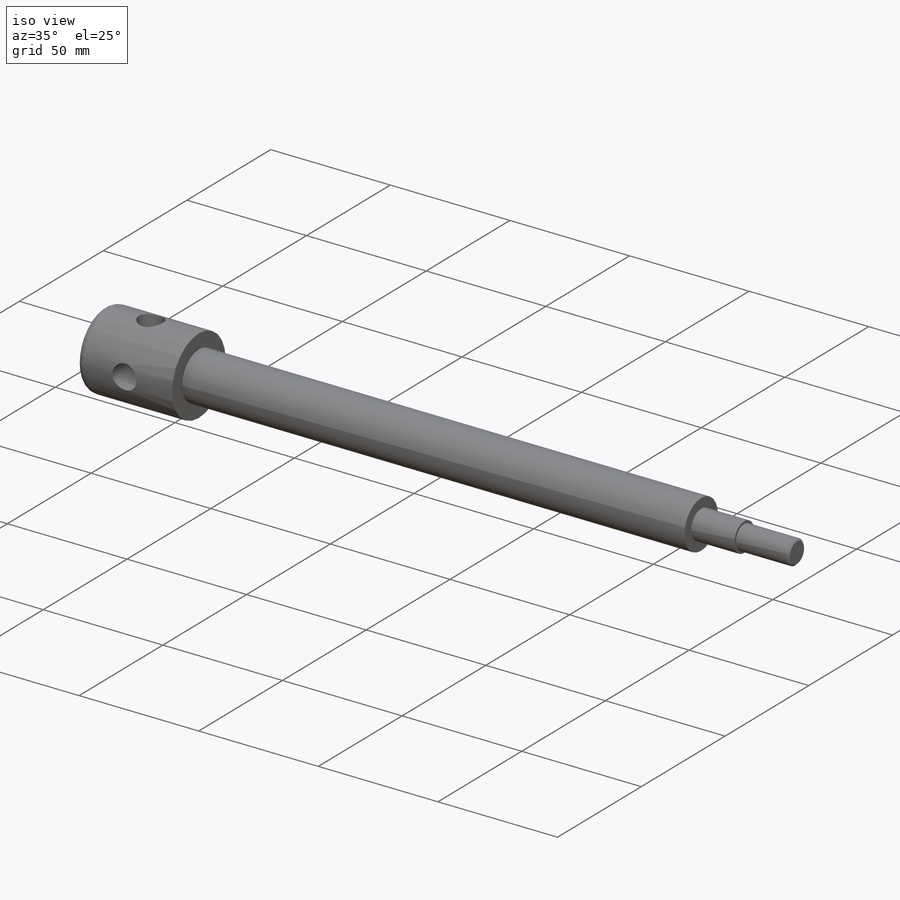
[diagram: iso view]
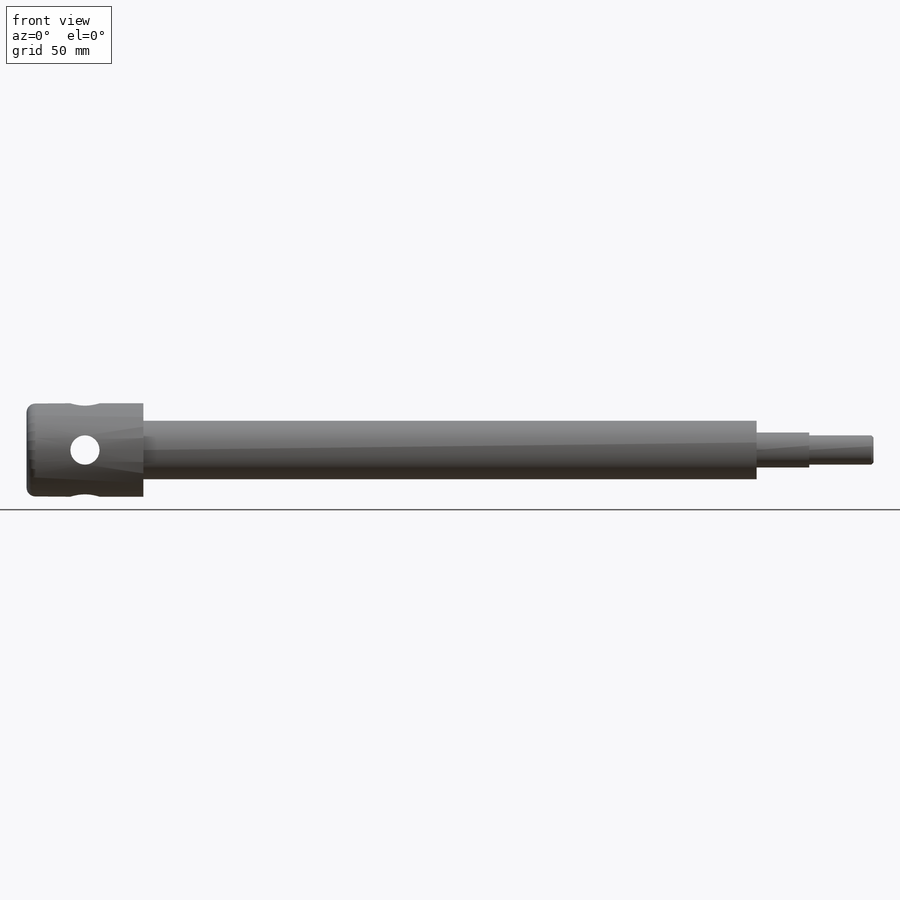
[diagram: front view]
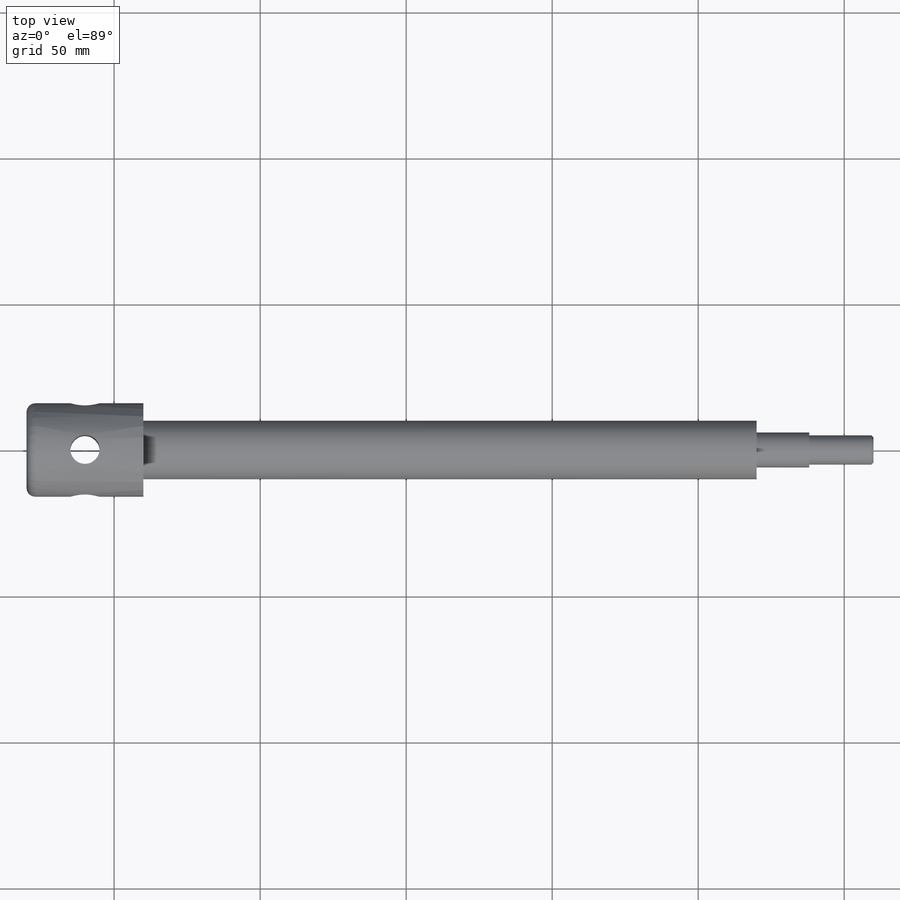
[diagram: top view]
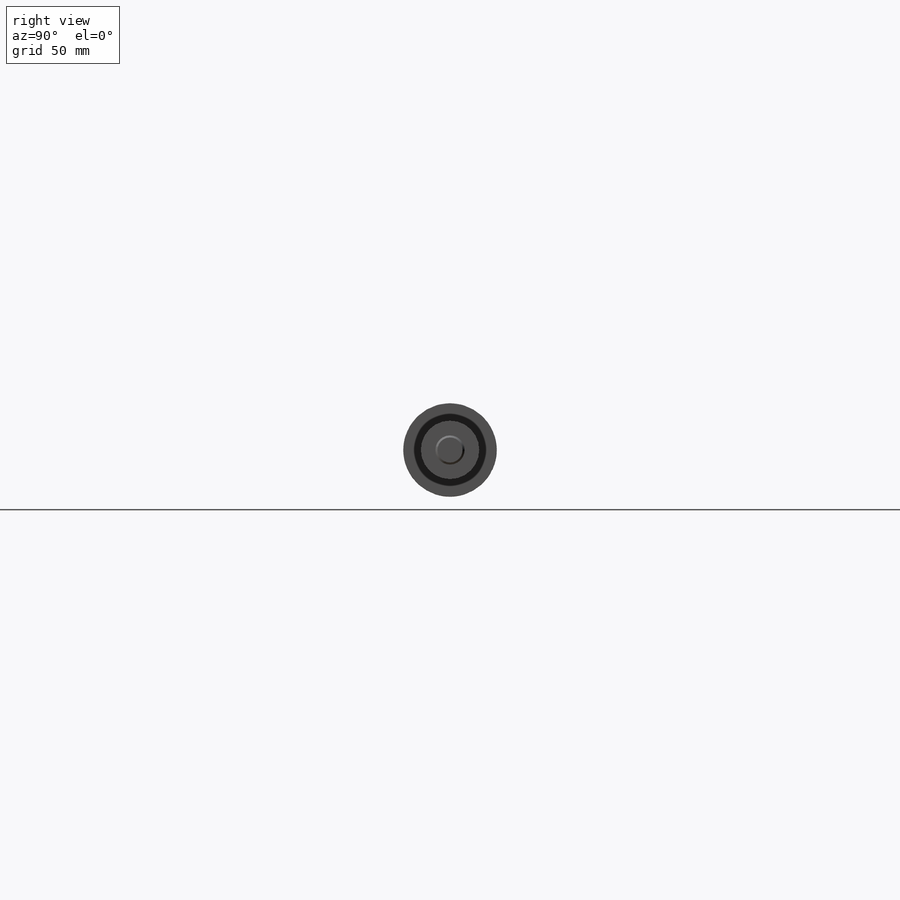
[diagram: right view]
SOLIDWORKS PART (.sldprt)
format: sldprt  version: not decoded by parser v0  size: 253,952 bytes
history: native  units: mm
features: sketch x4, thread x2, cut_extrude x2, material x1, revolve x1 (+13 scaffold rows collapsed)
feature tree (23):
  scaffold x13  (default folders/planes/origin — collapsed)
  material  "Material <not specified>"
  sketch  "Sketch1"  dims[c1.D9=3.0mm c1.D1=5.0mm c1.D2=6.0mm c1.D3=22.0mm c1.D4=18.0mm c1.D5=250.0mm c1.D6=40.0mm c1.D7=16.0mm c1.D8=~9.998359mm c1.D10=1.0mm c1.D11=1.0mm c2.D11=45.0deg]
  revolve  "Revolve1"  [1 undecoded]
  thread  "Cosmetic Thread1"  Diameter=170mm  [1 undecoded]
  thread  "Cosmetic Thread2"  Diameter=22mm  [1 undecoded]
  sketch  "Sketch2"  dims[D3=10.0mm D1=20.0mm D2=16.0mm]
  cut_extrude  "Cut-Extrude1"  Depth=100mm
  sketch  "Sketch3"  dims[D2=10.0mm D1=20.0mm]
  cut_extrude  "Cut-Extrude2"  Depth=100mm
  sketch  "Sketch4"  dims[D1=170.0mm D2=~19.996718mm]
decode coverage: 8 of 9 modeling features carry decoded parameters
note: ~ marks probable driven/reference dimensions
note: 3 parameter values undecoded
note: suppression state not decoded; provenance and decode notes live in map.json
